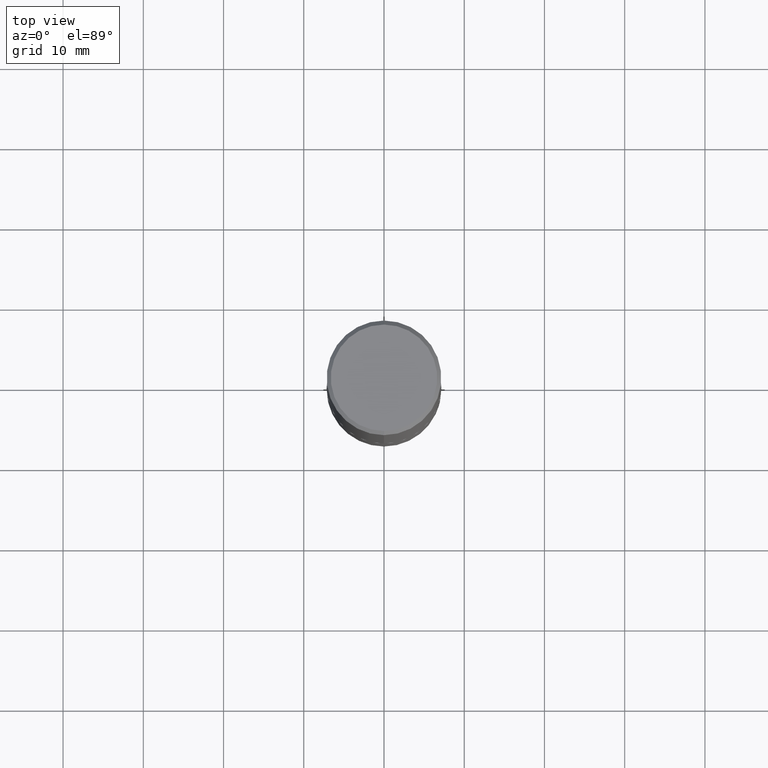
[diagram: clean part render]
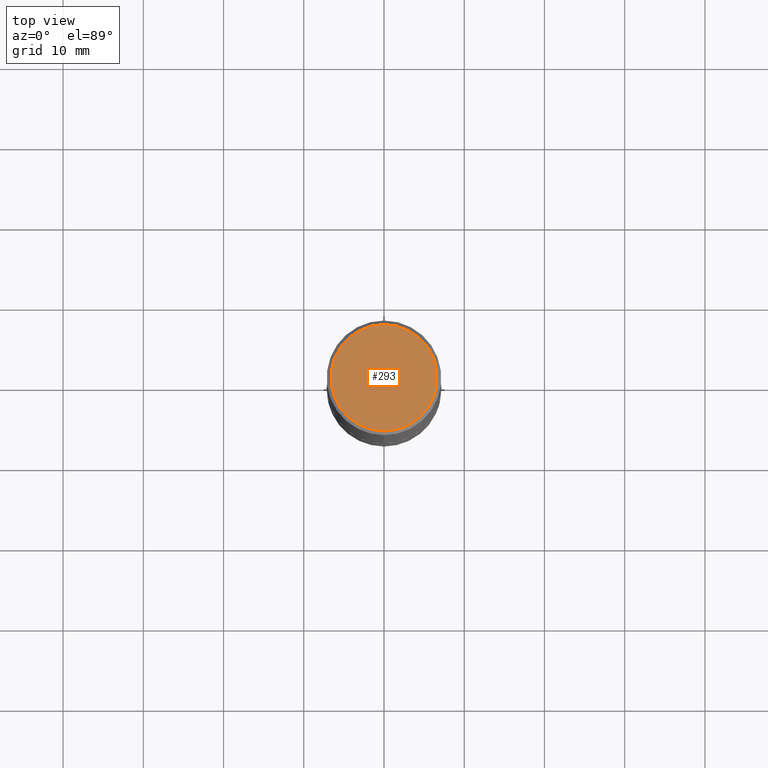
[diagram: same view with one face highlighted and labeled with its STEP entity id]
A machine part, top view. The second image highlights one B-rep face of the part: STEP entity #293.
In plain terms, the highlighted planar face has unit normal (0, -0, -1).
Its self-contained STEP definition (entity closure, byte-faithful):
#20 = VERTEX_POINT ( 'NONE', #33 ) ;
#25 = CARTESIAN_POINT ( 'NONE',  ( 1.894128626322399214E-15, 0.2612499999999998157, -7.840941250697587073E-16 ) ) ;
#33 = CARTESIAN_POINT ( 'NONE',  ( -1.860910081895526737E-15, -0.2612499999999998157, 1.039829049678108414E-15 ) ) ;
#73 = AXIS2_PLACEMENT_3D ( 'NONE', #243, #335, #370 ) ;
#110 = FACE_OUTER_BOUND ( 'NONE', #290, .T. ) ;
#113 = CIRCLE ( 'NONE', #308, 0.2612499999999998157 ) ;
#121 = CIRCLE ( 'NONE', #287, 0.2612499999999998157 ) ;
#128 = DIRECTION ( 'NONE',  ( -6.982962677686265133E-15, -1.000000000000000000, 3.490762056933719327E-15 ) ) ;
#130 = CARTESIAN_POINT ( 'NONE',  ( -3.127601146206782890E-45, 4.463548857278161624E-31, 1.278674623041748289E-16 ) ) ;
#143 = EDGE_CURVE ( 'NONE', #20, #289, #121, .T. ) ;
#156 = DIRECTION ( 'NONE',  ( -2.445971078057962310E-29, 3.490762056933719721E-15, 1.000000000000000000 ) ) ;
#207 = ORIENTED_EDGE ( 'NONE', *, *, #143, .T. ) ;
#210 = EDGE_CURVE ( 'NONE', #289, #20, #113, .T. ) ;
#243 = CARTESIAN_POINT ( 'NONE',  ( 1.824298999545535522E-15, 0.2612499999999998157, -8.480278562218461340E-16 ) ) ;
#246 = PLANE ( 'NONE',  #73 ) ;
#261 = DIRECTION ( 'NONE',  ( -2.445971078057962310E-29, 3.490762056933719721E-15, 1.000000000000000000 ) ) ;
#271 = ORIENTED_EDGE ( 'NONE', *, *, #210, .T. ) ;
#287 = AXIS2_PLACEMENT_3D ( 'NONE', #390, #156, #128 ) ;
#289 = VERTEX_POINT ( 'NONE', #25 ) ;
#290 = EDGE_LOOP ( 'NONE', ( #271, #207 ) ) ;
#293 = ADVANCED_FACE ( 'NONE', ( #110 ), #246, .F. ) ;
#308 = AXIS2_PLACEMENT_3D ( 'NONE', #130, #261, #357 ) ;
#335 = DIRECTION ( 'NONE',  ( 2.445971078057961469E-29, -3.490762056933720116E-15, -1.000000000000000000 ) ) ;
#357 = DIRECTION ( 'NONE',  ( -6.982962677686265133E-15, -1.000000000000000000, 3.490762056933719327E-15 ) ) ;
#370 = DIRECTION ( 'NONE',  ( 6.982962677686265922E-15, 1.000000000000000000, -3.490762056933720116E-15 ) ) ;
#390 = CARTESIAN_POINT ( 'NONE',  ( -3.127601146206782890E-45, 4.463548857278161624E-31, 1.278674623041748289E-16 ) ) ;